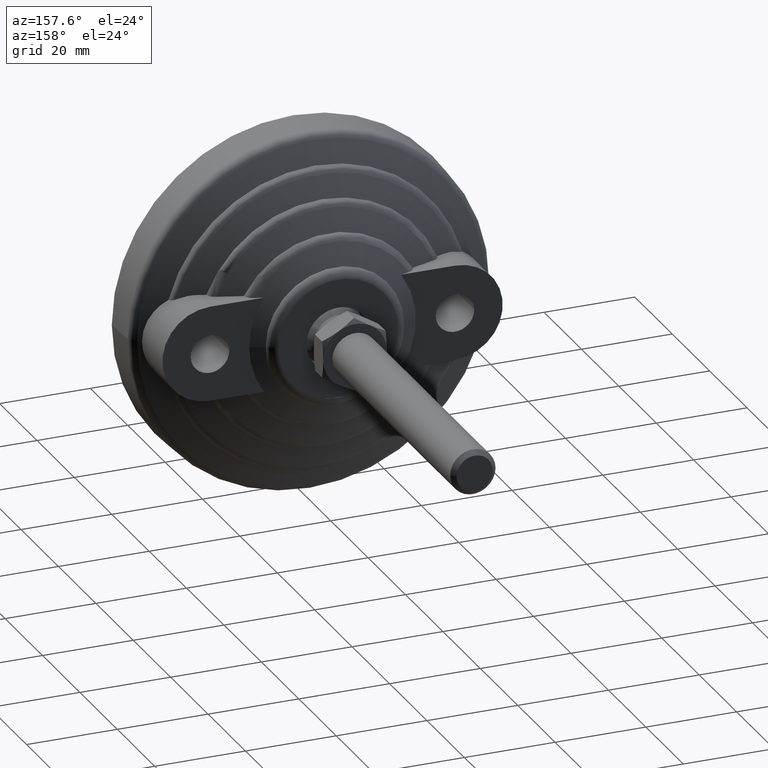
[diagram: clean part render]
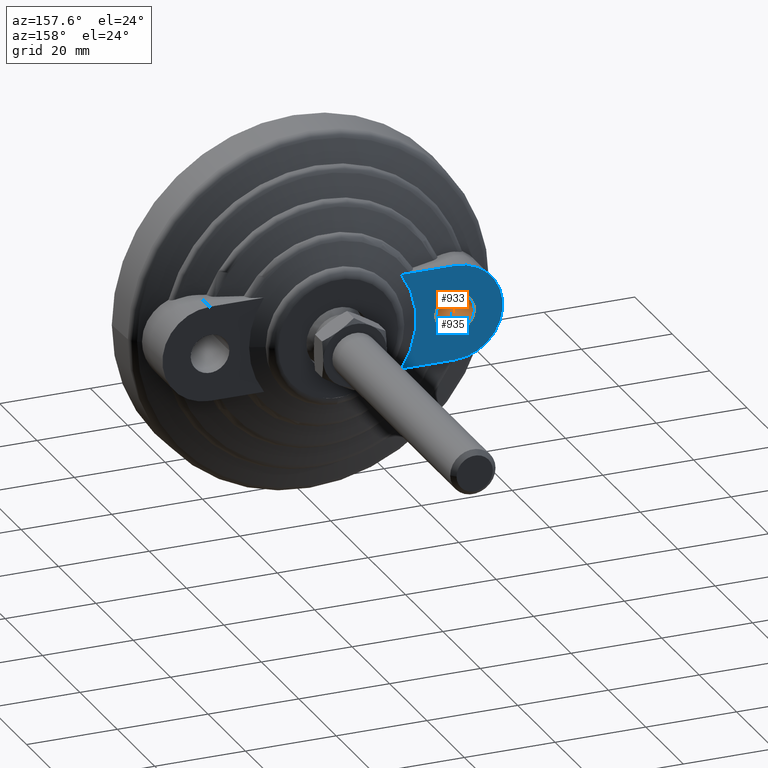
[diagram: same view with the hole feature highlighted: cylindrical wall and planar end face, labeled with their STEP entity ids]
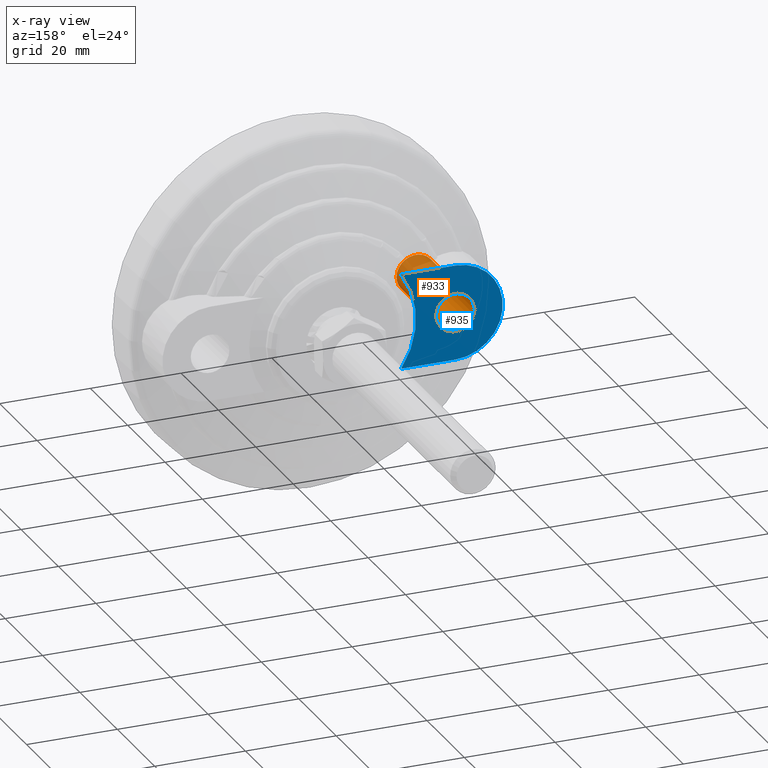
[diagram: x-ray of the same camera — body ghosted, the hole faces saturated]
A machine part, auxiliary view. The highlighted faces form one hole feature of diameter 8.5 mm: the cylindrical wall (entity #933, orange) and its adjacent planar end face (entity #935, blue) — they share a circular edge in the B-rep.
The next image is the same camera in x-ray (body ghosted, the hole faces saturated) — the bore reads through the body.
Wall:
#141=FACE_OUTER_BOUND('',#196,.T.);
#196=EDGE_LOOP('',(#642,#643,#644,#645,#646,#647));
#258=LINE('',#1491,#282);
#282=VECTOR('',#1212,4.25);
#313=CIRCLE('',#1061,4.25);
#314=CIRCLE('',#1062,4.25);
#315=CIRCLE('',#1063,4.25);
#316=CIRCLE('',#1064,4.25);
#383=VERTEX_POINT('',#1486);
#384=VERTEX_POINT('',#1487);
#385=VERTEX_POINT('',#1490);
#386=VERTEX_POINT('',#1492);
#487=EDGE_CURVE('',#383,#384,#313,.T.);
#488=EDGE_CURVE('',#384,#383,#314,.T.);
#489=EDGE_CURVE('',#384,#385,#258,.T.);
#490=EDGE_CURVE('',#386,#385,#315,.T.);
#491=EDGE_CURVE('',#385,#386,#316,.T.);
#642=ORIENTED_EDGE('',*,*,#487,.F.);
#643=ORIENTED_EDGE('',*,*,#488,.F.);
#644=ORIENTED_EDGE('',*,*,#489,.T.);
#645=ORIENTED_EDGE('',*,*,#490,.F.);
#646=ORIENTED_EDGE('',*,*,#491,.F.);
#647=ORIENTED_EDGE('',*,*,#489,.F.);
#925=CYLINDRICAL_SURFACE('',#1060,4.25);
#933=ADVANCED_FACE('',(#141),#925,.F.);
#1060=AXIS2_PLACEMENT_3D('',#1485,#1206,#1207);
#1061=AXIS2_PLACEMENT_3D('',#1488,#1208,#1209);
#1062=AXIS2_PLACEMENT_3D('',#1489,#1210,#1211);
#1063=AXIS2_PLACEMENT_3D('',#1493,#1213,#1214);
#1064=AXIS2_PLACEMENT_3D('',#1494,#1215,#1216);
#1206=DIRECTION('center_axis',(0.,-1.,0.));
#1207=DIRECTION('ref_axis',(1.,0.,0.));
#1208=DIRECTION('center_axis',(0.,1.,0.));
#1209=DIRECTION('ref_axis',(1.,0.,0.));
#1210=DIRECTION('center_axis',(0.,1.,0.));
#1211=DIRECTION('ref_axis',(1.,0.,0.));
#1212=DIRECTION('',(0.,1.,0.));
#1213=DIRECTION('center_axis',(1.33016286709162E-34,-1.,1.490666865497E-33));
#1214=DIRECTION('ref_axis',(1.,0.,0.));
#1215=DIRECTION('center_axis',(1.33016286709162E-34,-1.,1.490666865497E-33));
#1216=DIRECTION('ref_axis',(1.,0.,0.));
#1485=CARTESIAN_POINT('Origin',(-27.,10.5,0.));
#1486=CARTESIAN_POINT('',(-22.75,0.,0.));
#1487=CARTESIAN_POINT('',(-31.25,0.,-5.20474889637625E-16));
#1488=CARTESIAN_POINT('Origin',(-27.,0.,0.));
#1489=CARTESIAN_POINT('Origin',(-27.,0.,0.));
#1490=CARTESIAN_POINT('',(-31.25,21.,-5.20474889637625E-16));
#1491=CARTESIAN_POINT('',(-31.25,10.5,-5.20474889637625E-16));
#1492=CARTESIAN_POINT('',(-22.75,21.,0.));
#1493=CARTESIAN_POINT('Origin',(-27.,21.,0.));
#1494=CARTESIAN_POINT('Origin',(-27.,21.,0.));
End face:
#92=FACE_BOUND('',#199,.T.);
#100=PLANE('',#1067);
#143=FACE_OUTER_BOUND('',#198,.T.);
#198=EDGE_LOOP('',(#657,#658,#659,#660));
#199=EDGE_LOOP('',(#661,#662));
#261=LINE('',#1569,#285);
#262=LINE('',#1572,#286);
#285=VECTOR('',#1227,10.);
#286=VECTOR('',#1230,10.);
#315=CIRCLE('',#1063,4.25);
#316=CIRCLE('',#1064,4.25);
#318=CIRCLE('',#1068,18.3939652558082);
#319=CIRCLE('',#1069,10.5);
#385=VERTEX_POINT('',#1490);
#386=VERTEX_POINT('',#1492);
#396=VERTEX_POINT('',#1565);
#397=VERTEX_POINT('',#1566);
#398=VERTEX_POINT('',#1568);
#399=VERTEX_POINT('',#1570);
#490=EDGE_CURVE('',#386,#385,#315,.T.);
#491=EDGE_CURVE('',#385,#386,#316,.T.);
#501=EDGE_CURVE('',#396,#397,#318,.T.);
#502=EDGE_CURVE('',#398,#396,#261,.T.);
#503=EDGE_CURVE('',#399,#398,#319,.T.);
#504=EDGE_CURVE('',#397,#399,#262,.T.);
#657=ORIENTED_EDGE('',*,*,#501,.F.);
#658=ORIENTED_EDGE('',*,*,#502,.F.);
#659=ORIENTED_EDGE('',*,*,#503,.F.);
#660=ORIENTED_EDGE('',*,*,#504,.F.);
#661=ORIENTED_EDGE('',*,*,#490,.T.);
#662=ORIENTED_EDGE('',*,*,#491,.T.);
#935=ADVANCED_FACE('',(#143,#92),#100,.T.);
#1063=AXIS2_PLACEMENT_3D('',#1493,#1213,#1214);
#1064=AXIS2_PLACEMENT_3D('',#1494,#1215,#1216);
#1067=AXIS2_PLACEMENT_3D('',#1564,#1223,#1224);
#1068=AXIS2_PLACEMENT_3D('',#1567,#1225,#1226);
#1069=AXIS2_PLACEMENT_3D('',#1571,#1228,#1229);
#1213=DIRECTION('center_axis',(1.33016286709162E-34,-1.,1.490666865497E-33));
#1214=DIRECTION('ref_axis',(1.,0.,0.));
#1215=DIRECTION('center_axis',(1.33016286709162E-34,-1.,1.490666865497E-33));
#1216=DIRECTION('ref_axis',(1.,0.,0.));
#1223=DIRECTION('center_axis',(-1.33016286709162E-34,1.,-1.490666865497E-33));
#1224=DIRECTION('ref_axis',(0.,1.490666865497E-33,1.));
#1225=DIRECTION('center_axis',(-1.33016286709162E-34,1.,-1.490666865497E-33));
#1226=DIRECTION('ref_axis',(-1.,0.,0.));
#1227=DIRECTION('',(1.,0.,0.));
#1228=DIRECTION('center_axis',(0.,-1.,0.));
#1229=DIRECTION('ref_axis',(0.,0.,-1.));
#1230=DIRECTION('',(-1.,0.,0.));
#1490=CARTESIAN_POINT('',(-31.25,21.,-5.20474889637625E-16));
#1492=CARTESIAN_POINT('',(-22.75,21.,0.));
#1493=CARTESIAN_POINT('Origin',(-27.,21.,0.));
#1494=CARTESIAN_POINT('Origin',(-27.,21.,0.));
#1564=CARTESIAN_POINT('Origin',(2.50621500748053E-16,21.,0.));
#1565=CARTESIAN_POINT('',(-15.1025811645519,21.,-10.5));
#1566=CARTESIAN_POINT('',(-15.1025811645519,21.,10.5));
#1567=CARTESIAN_POINT('Origin',(0.,21.,0.));
#1568=CARTESIAN_POINT('',(-27.,21.,-10.5));
#1569=CARTESIAN_POINT('',(27.,21.,-10.5));
#1570=CARTESIAN_POINT('',(-27.,21.,10.5));
#1571=CARTESIAN_POINT('Origin',(-27.,21.,0.));
#1572=CARTESIAN_POINT('',(-27.,21.,10.5));